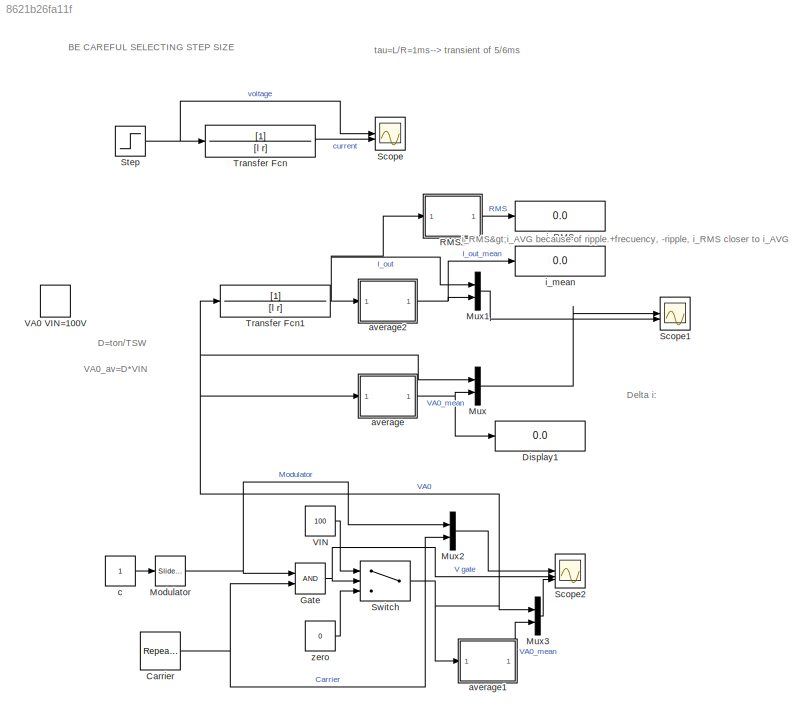
MODEL slx_8621b26fa11f
KIND model
CONFIG AbsTol = auto
CONFIG EnableMultiTasking = off
CONFIG FixedStep = 1e-6
CONFIG MaxStep = 1e-4
CONFIG MinStep = auto
CONFIG RelTol = 1e-3
CONFIG SampleTimeConstraint = Unconstrained
CONFIG SolverName = FixedStepAuto
CONFIG StartTime = 0.0
CONFIG StopTime = inf
BLOCK [Reference] Carrier  REF=simulink/Sources/Repeating
Sequence
  SourceBlock = simulink/Sources/Repeating\nSequence
  SourceType = Repeating table
BLOCK [Display] Display1
  Decimation = 1
BLOCK [RelationalOperator] Gate
  InputSameDT = off
  OutDataTypeStr = boolean
  RndMeth = Simplest
BLOCK [Reference] Modulator  REF=simulink/Math
Operations/Slider
Gain
  SourceBlock = simulink/Math\nOperations/Slider\nGain
  SourceType = Slider Gain
BLOCK [Mux] Mux
  DisplayOption = bar
  Inputs = 2
BLOCK [Mux] Mux1
  DisplayOption = bar
  Inputs = 2
BLOCK [Mux] Mux2
  DisplayOption = bar
  Inputs = 2
BLOCK [Mux] Mux3
  DisplayOption = bar
  Inputs = 2
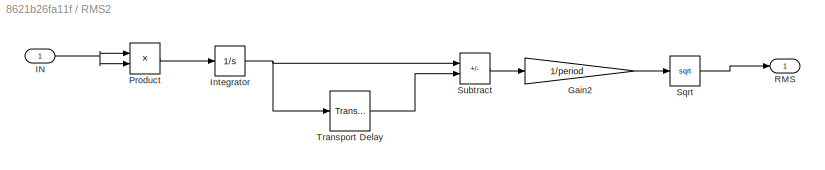
BLOCK [SubSystem] RMS2
BLOCK [Gain] RMS2/Gain2
  Gain = 1/period
BLOCK [Inport] RMS2/IN
BLOCK [Integrator] RMS2/Integrator
BLOCK [Product] RMS2/Product
BLOCK [Outport] RMS2/RMS
BLOCK [Sqrt] RMS2/Sqrt
BLOCK [Sum] RMS2/Subtract
  IconShape = rectangular
  Inputs = +-
BLOCK [TransportDelay] RMS2/Transport Delay
  DelayTime = period
BLOCK [Scope] Scope
  Commented = on
  Floating = off
  NumInputPorts = 2
  ScopeSpecificationString = Simulink.scopes.TimeScopeBlockCfg('CurrentConfiguration', extmgr.ConfigurationSet(extmgr.Configuration('Core','General UI',true),extmgr.Configuration('Core','Source UI',true),extmgr.Configuration('Sources','WiredSimulink',true),extmgr.Configuration('Visuals','Time Domain',true,'SerializedDisplays',{struct('MinYLimReal','-12.5','MaxYLimReal','112.5','YLabelReal','[V]','MinYLimMag','0.00000','MaxYLi...<+2426ch>
BLOCK [Scope] Scope1
  Floating = off
  NumInputPorts = 2
  ScopeSpecificationString = Simulink.scopes.TimeScopeBlockCfg('CurrentConfiguration', extmgr.ConfigurationSet(extmgr.Configuration('Core','General UI',true),extmgr.Configuration('Core','Source UI',true),extmgr.Configuration('Sources','WiredSimulink',true,'DataLoggingVariableName','ScopeData1'),extmgr.Configuration('Visuals','Time Domain',true,'SerializedDisplays',{struct('MinYLimReal','-25.00000','MaxYLimReal','225.00000','Y...<+3006ch>
BLOCK [Scope] Scope2
  Floating = off
  NumInputPorts = 3
  ScopeSpecificationString = Simulink.scopes.TimeScopeBlockCfg('CurrentConfiguration', extmgr.ConfigurationSet(extmgr.Configuration('Core','General UI',true),extmgr.Configuration('Core','Source UI',true),extmgr.Configuration('Sources','WiredSimulink',true,'DataLoggingVariableName','ScopeData2'),extmgr.Configuration('Visuals','Time Domain',true,'SerializedDisplays',{struct('MinYLimReal','-0.125','MaxYLimReal','1.125','YLabelRe...<+3530ch>
BLOCK [Step] Step
  After = 100
  Commented = on
  SampleTime = 0
BLOCK [Switch] Switch
  Criteria = u2 > Threshold
  InputSameDT = off
  SaturateOnIntegerOverflow = off
BLOCK [TransferFcn] Transfer Fcn
  Commented = on
  Denominator = [l r]
BLOCK [TransferFcn] Transfer Fcn1
  Denominator = [l r]
BLOCK [DiscretePulseGenerator] VA0 VIN=100V
  Amplitude = 100
  Commented = on
  Period = 1/fSW
  PulseType = Time based
  PulseWidth = 50
BLOCK [Constant] VIN
  Value = 100
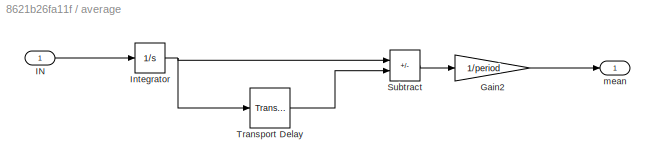
BLOCK [SubSystem] average
BLOCK [Gain] average/Gain2
  Gain = 1/period
BLOCK [Inport] average/IN
BLOCK [Integrator] average/Integrator
BLOCK [Sum] average/Subtract
  IconShape = rectangular
  Inputs = +-
BLOCK [TransportDelay] average/Transport Delay
  DelayTime = period
BLOCK [Outport] average/mean
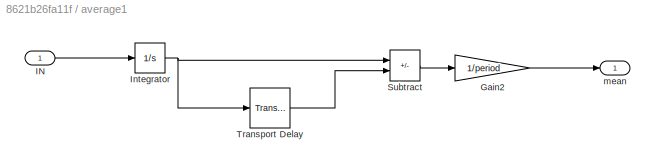
BLOCK [SubSystem] average1
BLOCK [Gain] average1/Gain2
  Gain = 1/period
BLOCK [Inport] average1/IN
BLOCK [Integrator] average1/Integrator
BLOCK [Sum] average1/Subtract
  IconShape = rectangular
  Inputs = +-
BLOCK [TransportDelay] average1/Transport Delay
  DelayTime = period
BLOCK [Outport] average1/mean
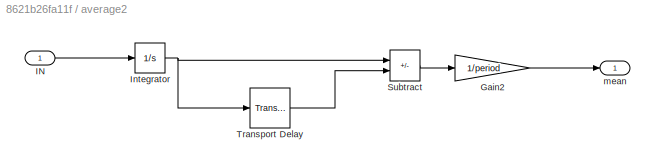
BLOCK [SubSystem] average2
BLOCK [Gain] average2/Gain2
  Gain = 1/period
BLOCK [Inport] average2/IN
BLOCK [Integrator] average2/Integrator
BLOCK [Sum] average2/Subtract
  IconShape = rectangular
  Inputs = +-
BLOCK [TransportDelay] average2/Transport Delay
  DelayTime = period
BLOCK [Outport] average2/mean
BLOCK [Constant] c
BLOCK [Display] i_RMS
  Decimation = 1
BLOCK [Display] i_mean
  Decimation = 1
BLOCK [Constant] zero
  Value = 0
ANNOTATION (root): i_RMS>i_AVG because of ripple. +frecuency, -ripple, i_RMS closer to i_AVG
ANNOTATION (root): BE CAREFUL SELECTING STEP SIZE
ANNOTATION (root): D=ton/TSW
ANNOTATION (root): Delta i:
ANNOTATION (root): VA0_av=D*VIN
ANNOTATION (root): tau=L/R=1ms--> transient of 5/6ms
NET Carrier:1 -> Gate:2, Mux2:2
NET Gate:1 -> Scope2:2, Switch:2
NET Modulator:1 -> Gate:1, Mux2:1
LINE Mux1:1 -> Scope1:2
LINE Mux2:1 -> Scope2:1
LINE Mux3:1 -> Scope2:3
LINE Mux:1 -> Scope1:1
LINE RMS2/Gain2:1 -> RMS2/Sqrt:1
NET RMS2/IN:1 -> RMS2/Product:1, RMS2/Product:2
NET RMS2/Integrator:1 -> RMS2/Subtract:1, RMS2/Transport Delay:1
LINE RMS2/Product:1 -> RMS2/Integrator:1
LINE RMS2/Sqrt:1 -> RMS2/RMS:1
LINE RMS2/Subtract:1 -> RMS2/Gain2:1
LINE RMS2/Transport Delay:1 -> RMS2/Subtract:2
LINE RMS2:1 -> i_RMS:1
NET Step:1 -> Scope:1, Transfer Fcn:1
NET Switch:1 -> Mux3:1, Mux:1, Transfer Fcn1:1, average1:1, average:1
NET Transfer Fcn1:1 -> Mux1:1, RMS2:1, average2:1
LINE Transfer Fcn:1 -> Scope:2
LINE VIN:1 -> Switch:1
LINE average/Gain2:1 -> average/mean:1
LINE average/IN:1 -> average/Integrator:1
NET average/Integrator:1 -> average/Subtract:1, average/Transport Delay:1
LINE average/Subtract:1 -> average/Gain2:1
LINE average/Transport Delay:1 -> average/Subtract:2
LINE average1/Gain2:1 -> average1/mean:1
LINE average1/IN:1 -> average1/Integrator:1
NET average1/Integrator:1 -> average1/Subtract:1, average1/Transport Delay:1
LINE average1/Subtract:1 -> average1/Gain2:1
LINE average1/Transport Delay:1 -> average1/Subtract:2
LINE average1:1 -> Mux3:2
LINE average2/Gain2:1 -> average2/mean:1
LINE average2/IN:1 -> average2/Integrator:1
NET average2/Integrator:1 -> average2/Subtract:1, average2/Transport Delay:1
LINE average2/Subtract:1 -> average2/Gain2:1
LINE average2/Transport Delay:1 -> average2/Subtract:2
NET average2:1 -> Mux1:2, i_mean:1
NET average:1 -> Display1:1, Mux:2
LINE c:1 -> Modulator:1
LINE zero:1 -> Switch:3
note: NET lines group one-source signal fan-out (src -> all destinations, sorted); 1:1 wires keep LINE
